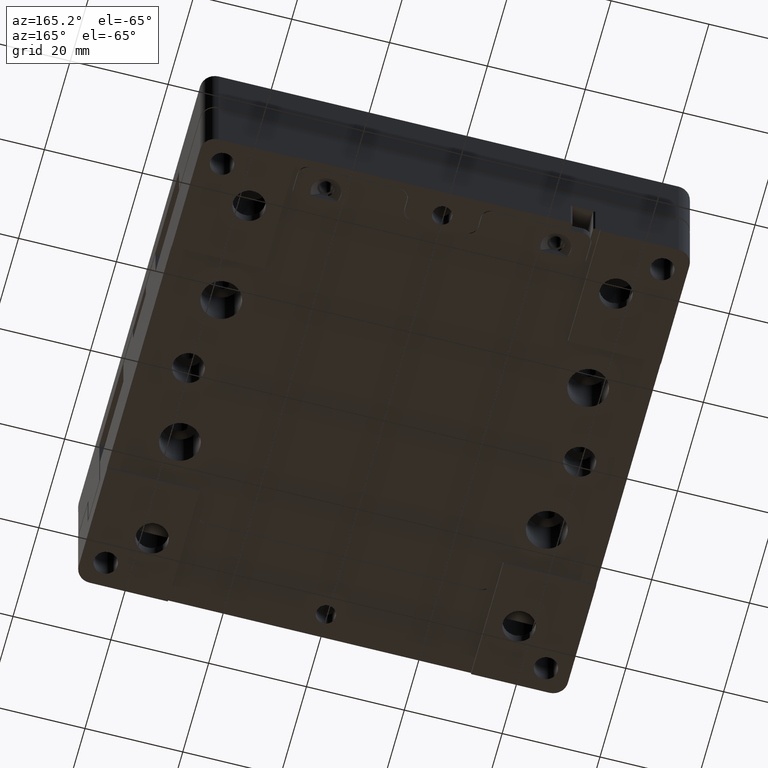
[diagram: clean part render]
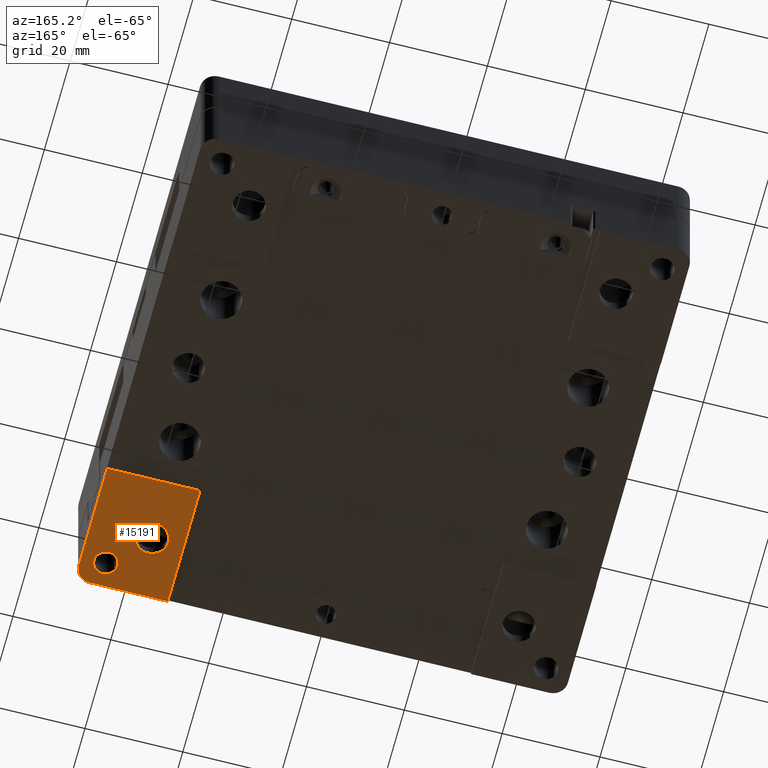
[diagram: same view with one face highlighted and labeled with its STEP entity id]
A machine part, auxiliary view. The second image highlights one B-rep face of the part: STEP entity #15191.
In plain terms, the highlighted planar face has unit normal (0, 0, -1).
Its self-contained STEP definition (entity closure, byte-faithful):
#27 = ORIENTED_EDGE ( 'NONE', *, *, #6663, .T. ) ;
#550 = CIRCLE ( 'NONE', #2385, 3.000000000000002665 ) ;
#665 = VERTEX_POINT ( 'NONE', #9940 ) ;
#1233 = CIRCLE ( 'NONE', #12598, 3.299999999999997158 ) ;
#1269 = EDGE_CURVE ( 'NONE', #10881, #6168, #15785, .T. ) ;
#1463 = DIRECTION ( 'NONE',  ( 1.000000000000000000, 0.000000000000000000, 0.000000000000000000 ) ) ;
#1499 = EDGE_CURVE ( 'NONE', #11530, #4619, #3695, .T. ) ;
#1701 = CARTESIAN_POINT ( 'NONE',  ( 45.00000000000000000, -45.00000000000000000, -14.50000000000000000 ) ) ;
#2385 = AXIS2_PLACEMENT_3D ( 'NONE', #14309, #2960, #5366 ) ;
#2856 = VERTEX_POINT ( 'NONE', #3014 ) ;
#2960 = DIRECTION ( 'NONE',  ( -0.000000000000000000, -0.000000000000000000, 1.000000000000000000 ) ) ;
#2999 = EDGE_CURVE ( 'NONE', #10881, #665, #6879, .T. ) ;
#3014 = CARTESIAN_POINT ( 'NONE',  ( 47.39999999999999858, -45.00000000000000000, -14.50000000000000000 ) ) ;
#3033 = VECTOR ( 'NONE', #6144, 1000.000000000000000 ) ;
#3285 = CARTESIAN_POINT ( 'NONE',  ( 50.00000000000000711, -25.00000000000000355, -14.50000000000000000 ) ) ;
#3292 = ORIENTED_EDGE ( 'NONE', *, *, #7867, .T. ) ;
#3695 = LINE ( 'NONE', #5930, #8876 ) ;
#4619 = VERTEX_POINT ( 'NONE', #3285 ) ;
#4650 = EDGE_LOOP ( 'NONE', ( #8791, #15375, #6349, #12362, #7975 ) ) ;
#5039 = CARTESIAN_POINT ( 'NONE',  ( 47.00000000000000000, -50.00000000000000000, -14.49999999999999822 ) ) ;
#5366 = DIRECTION ( 'NONE',  ( -1.000000000000000000, 0.000000000000000000, 0.000000000000000000 ) ) ;
#5418 = CARTESIAN_POINT ( 'NONE',  ( 40.79999999999999716, -37.50000000000000000, -14.50000000000000000 ) ) ;
#5429 = EDGE_LOOP ( 'NONE', ( #3292 ) ) ;
#5523 = PLANE ( 'NONE',  #12135 ) ;
#5807 = EDGE_CURVE ( 'NONE', #665, #4619, #6308, .T. ) ;
#5930 = CARTESIAN_POINT ( 'NONE',  ( 50.00000000000000000, 0.000000000000000000, -14.50000000000000000 ) ) ;
#6137 = CARTESIAN_POINT ( 'NONE',  ( 31.00000000000000000, -50.00000000000000711, -14.50000000000000000 ) ) ;
#6144 = DIRECTION ( 'NONE',  ( 1.000000000000000000, 0.000000000000000000, 0.000000000000000000 ) ) ;
#6168 = VERTEX_POINT ( 'NONE', #5039 ) ;
#6308 = LINE ( 'NONE', #12756, #3033 ) ;
#6349 = ORIENTED_EDGE ( 'NONE', *, *, #1499, .F. ) ;
#6663 = EDGE_CURVE ( 'NONE', #2856, #2856, #13887, .T. ) ;
#6783 = CARTESIAN_POINT ( 'NONE',  ( 50.00000000000000000, -47.00000000000000000, -14.49999999999999822 ) ) ;
#6879 = LINE ( 'NONE', #11916, #10549 ) ;
#7752 = CARTESIAN_POINT ( 'NONE',  ( -50.00000000000000000, -50.00000000000000000, -14.50000000000000000 ) ) ;
#7867 = EDGE_CURVE ( 'NONE', #11631, #11631, #1233, .T. ) ;
#7975 = ORIENTED_EDGE ( 'NONE', *, *, #1269, .F. ) ;
#8791 = ORIENTED_EDGE ( 'NONE', *, *, #2999, .T. ) ;
#8823 = DIRECTION ( 'NONE',  ( 0.000000000000000000, 0.000000000000000000, 1.000000000000000000 ) ) ;
#8876 = VECTOR ( 'NONE', #9734, 1000.000000000000000 ) ;
#9044 = EDGE_CURVE ( 'NONE', #6168, #11530, #550, .T. ) ;
#9657 = CARTESIAN_POINT ( 'NONE',  ( -50.00000000000000000, -50.00000000000000000, -14.50000000000000000 ) ) ;
#9734 = DIRECTION ( 'NONE',  ( -0.000000000000000000, 1.000000000000000000, 0.000000000000000000 ) ) ;
#9940 = CARTESIAN_POINT ( 'NONE',  ( 31.00000000000000000, -25.00000000000000355, -14.50000000000000000 ) ) ;
#10486 = FACE_OUTER_BOUND ( 'NONE', #4650, .T. ) ;
#10549 = VECTOR ( 'NONE', #14488, 1000.000000000000000 ) ;
#10881 = VERTEX_POINT ( 'NONE', #6137 ) ;
#11530 = VERTEX_POINT ( 'NONE', #6783 ) ;
#11631 = VERTEX_POINT ( 'NONE', #5418 ) ;
#11651 = DIRECTION ( 'NONE',  ( -1.000000000000000000, 0.000000000000000000, -0.000000000000000000 ) ) ;
#11717 = DIRECTION ( 'NONE',  ( 1.000000000000000000, 0.000000000000000000, 0.000000000000000000 ) ) ;
#11916 = CARTESIAN_POINT ( 'NONE',  ( 31.00000000000000000, -25.00000000000000000, -14.50000000000000000 ) ) ;
#12034 = VECTOR ( 'NONE', #14553, 1000.000000000000000 ) ;
#12135 = AXIS2_PLACEMENT_3D ( 'NONE', #7752, #12793, #11651 ) ;
#12362 = ORIENTED_EDGE ( 'NONE', *, *, #9044, .F. ) ;
#12598 = AXIS2_PLACEMENT_3D ( 'NONE', #12795, #8823, #1463 ) ;
#12756 = CARTESIAN_POINT ( 'NONE',  ( 65.00000000000000000, -25.00000000000000000, -14.50000000000000000 ) ) ;
#12793 = DIRECTION ( 'NONE',  ( 0.000000000000000000, 0.000000000000000000, -1.000000000000000000 ) ) ;
#12795 = CARTESIAN_POINT ( 'NONE',  ( 37.50000000000000000, -37.50000000000000000, -14.50000000000000000 ) ) ;
#13887 = CIRCLE ( 'NONE', #15469, 2.399999999999999467 ) ;
#14309 = CARTESIAN_POINT ( 'NONE',  ( 47.00000000000000000, -47.00000000000000000, -14.49999999999999822 ) ) ;
#14368 = FACE_BOUND ( 'NONE', #16111, .T. ) ;
#14488 = DIRECTION ( 'NONE',  ( -0.000000000000000000, 1.000000000000000000, 0.000000000000000000 ) ) ;
#14553 = DIRECTION ( 'NONE',  ( 1.000000000000000000, 0.000000000000000000, 0.000000000000000000 ) ) ;
#15191 = ADVANCED_FACE ( 'NONE', ( #15611, #14368, #10486 ), #5523, .T. ) ;
#15375 = ORIENTED_EDGE ( 'NONE', *, *, #5807, .T. ) ;
#15469 = AXIS2_PLACEMENT_3D ( 'NONE', #1701, #15679, #11717 ) ;
#15611 = FACE_BOUND ( 'NONE', #5429, .T. ) ;
#15679 = DIRECTION ( 'NONE',  ( 0.000000000000000000, 0.000000000000000000, 1.000000000000000000 ) ) ;
#15785 = LINE ( 'NONE', #9657, #12034 ) ;
#16111 = EDGE_LOOP ( 'NONE', ( #27 ) ) ;